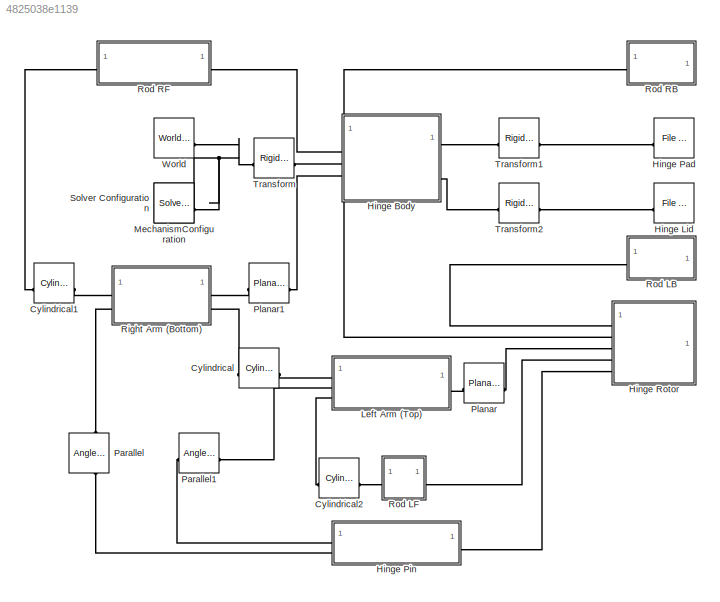
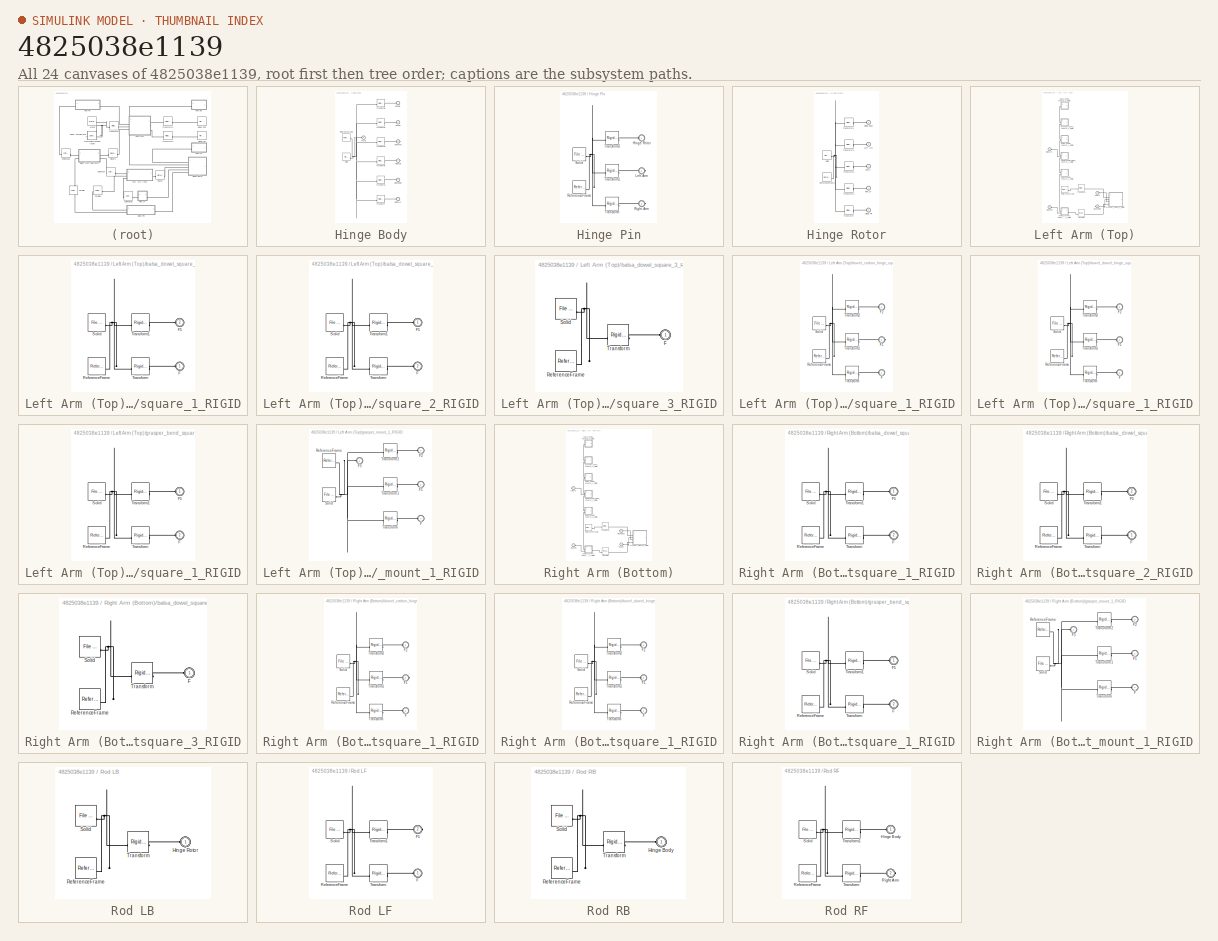
[diagram: thumbnail index - all 24 canvases of the model, root first then tree order]
MODEL slx_4825038e1139
KIND model
CONFIG AbsTol = auto
CONFIG EnableMultiTasking = off
CONFIG FixedStep = auto
CONFIG MaxStep = auto
CONFIG MinStep = auto
CONFIG RelTol = 1e-3
CONFIG SampleTimeConstraint = Unconstrained
CONFIG SolverName = VariableStepAuto
CONFIG StartTime = 0.0
CONFIG StopTime = 10.0
WORKSPACE source: external: MATLAB File  (data not in archive)
BLOCK [Reference] Cylindrical  REF=sm_lib/Joints/Cylindrical
Joint
  SourceBlock = sm_lib/Joints/Cylindrical\nJoint
  SourceType = Cylindrical\nJoint
BLOCK [Reference] Cylindrical1  REF=sm_lib/Joints/Cylindrical
Joint
  Commented = on
  SourceBlock = sm_lib/Joints/Cylindrical\nJoint
  SourceType = Cylindrical\nJoint
BLOCK [Reference] Cylindrical2  REF=sm_lib/Joints/Cylindrical
Joint
  SourceBlock = sm_lib/Joints/Cylindrical\nJoint
  SourceType = Cylindrical\nJoint
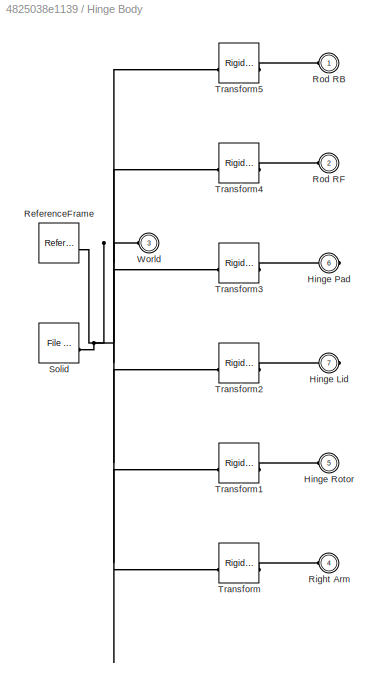
BLOCK [SubSystem] Hinge Body
BLOCK [PMIOPort] Hinge Body/Hinge Lid
  Port = 7
  Side = Right
BLOCK [PMIOPort] Hinge Body/Hinge Pad
  Port = 6
  Side = Right
BLOCK [PMIOPort] Hinge Body/Hinge Rotor
  Port = 5
  Side = Left
BLOCK [Reference] Hinge Body/ReferenceFrame  REF=sm_lib/Frames and
Transforms/Reference
Frame
  SourceBlock = sm_lib/Frames and\nTransforms/Reference\nFrame
  SourceType = Reference\nFrame
BLOCK [PMIOPort] Hinge Body/Right Arm
  Port = 4
  Side = Left
BLOCK [PMIOPort] Hinge Body/Rod RB
  Side = Left
BLOCK [PMIOPort] Hinge Body/Rod RF
  Port = 2
  Side = Left
BLOCK [Reference] Hinge Body/Solid  REF=sm_lib/Body Elements/File Solid
  SourceBlock = sm_lib/Body Elements/File Solid
  SourceType = File Solid
BLOCK [Reference] Hinge Body/Transform  REF=sm_lib/Frames and
Transforms/Rigid
Transform
  SourceBlock = sm_lib/Frames and\nTransforms/Rigid\nTransform
  SourceType = Rigid\nTransform
BLOCK [Reference] Hinge Body/Transform1  REF=sm_lib/Frames and
Transforms/Rigid
Transform
  SourceBlock = sm_lib/Frames and\nTransforms/Rigid\nTransform
  SourceType = Rigid\nTransform
BLOCK [Reference] Hinge Body/Transform2  REF=sm_lib/Frames and
Transforms/Rigid
Transform
  SourceBlock = sm_lib/Frames and\nTransforms/Rigid\nTransform
  SourceType = Rigid\nTransform
BLOCK [Reference] Hinge Body/Transform3  REF=sm_lib/Frames and
Transforms/Rigid
Transform
  SourceBlock = sm_lib/Frames and\nTransforms/Rigid\nTransform
  SourceType = Rigid\nTransform
BLOCK [Reference] Hinge Body/Transform4  REF=sm_lib/Frames and
Transforms/Rigid
Transform
  SourceBlock = sm_lib/Frames and\nTransforms/Rigid\nTransform
  SourceType = Rigid\nTransform
BLOCK [Reference] Hinge Body/Transform5  REF=sm_lib/Frames and
Transforms/Rigid
Transform
  SourceBlock = sm_lib/Frames and\nTransforms/Rigid\nTransform
  SourceType = Rigid\nTransform
BLOCK [PMIOPort] Hinge Body/World
  Port = 3
  Side = Left
BLOCK [Reference] Hinge Lid  REF=sm_lib/Body Elements/File Solid
  NameLocation = top
  SourceBlock = sm_lib/Body Elements/File Solid
  SourceType = File Solid
BLOCK [Reference] Hinge Pad  REF=sm_lib/Body Elements/File Solid
  NameLocation = top
  SourceBlock = sm_lib/Body Elements/File Solid
  SourceType = File Solid
BLOCK [SubSystem] Hinge Pin
BLOCK [PMIOPort] Hinge Pin/Hinge Rotor
  Side = Left
BLOCK [PMIOPort] Hinge Pin/Left Arm
  Port = 2
  Side = Right
BLOCK [Reference] Hinge Pin/ReferenceFrame  REF=sm_lib/Frames and
Transforms/Reference
Frame
  SourceBlock = sm_lib/Frames and\nTransforms/Reference\nFrame
  SourceType = Reference\nFrame
BLOCK [PMIOPort] Hinge Pin/Right Arm
  Port = 3
  Side = Right
BLOCK [Reference] Hinge Pin/Solid  REF=sm_lib/Body Elements/File Solid
  SourceBlock = sm_lib/Body Elements/File Solid
  SourceType = File Solid
BLOCK [Reference] Hinge Pin/Transform  REF=sm_lib/Frames and
Transforms/Rigid
Transform
  Commented = on
  SourceBlock = sm_lib/Frames and\nTransforms/Rigid\nTransform
  SourceType = Rigid\nTransform
BLOCK [Reference] Hinge Pin/Transform1  REF=sm_lib/Frames and
Transforms/Rigid
Transform
  Commented = on
  SourceBlock = sm_lib/Frames and\nTransforms/Rigid\nTransform
  SourceType = Rigid\nTransform
BLOCK [Reference] Hinge Pin/Transform2  REF=sm_lib/Frames and
Transforms/Rigid
Transform
  SourceBlock = sm_lib/Frames and\nTransforms/Rigid\nTransform
  SourceType = Rigid\nTransform
BLOCK [SubSystem] Hinge Rotor
BLOCK [PMIOPort] Hinge Rotor/Hinge Body
  Port = 2
  Side = Left
BLOCK [PMIOPort] Hinge Rotor/Hinge Pin
  Port = 5
  Side = Left
BLOCK [PMIOPort] Hinge Rotor/Left Arm
  Port = 3
  Side = Left
BLOCK [Reference] Hinge Rotor/ReferenceFrame  REF=sm_lib/Frames and
Transforms/Reference
Frame
  SourceBlock = sm_lib/Frames and\nTransforms/Reference\nFrame
  SourceType = Reference\nFrame
BLOCK [PMIOPort] Hinge Rotor/Rod 3
  Side = Left
BLOCK [PMIOPort] Hinge Rotor/Rod LF
  Port = 4
  Side = Left
BLOCK [Reference] Hinge Rotor/Solid  REF=sm_lib/Body Elements/File Solid
  SourceBlock = sm_lib/Body Elements/File Solid
  SourceType = File Solid
BLOCK [Reference] Hinge Rotor/Transform  REF=sm_lib/Frames and
Transforms/Rigid
Transform
  SourceBlock = sm_lib/Frames and\nTransforms/Rigid\nTransform
  SourceType = Rigid\nTransform
BLOCK [Reference] Hinge Rotor/Transform1  REF=sm_lib/Frames and
Transforms/Rigid
Transform
  SourceBlock = sm_lib/Frames and\nTransforms/Rigid\nTransform
  SourceType = Rigid\nTransform
BLOCK [Reference] Hinge Rotor/Transform2  REF=sm_lib/Frames and
Transforms/Rigid
Transform
  SourceBlock = sm_lib/Frames and\nTransforms/Rigid\nTransform
  SourceType = Rigid\nTransform
BLOCK [Reference] Hinge Rotor/Transform3  REF=sm_lib/Frames and
Transforms/Rigid
Transform
  SourceBlock = sm_lib/Frames and\nTransforms/Rigid\nTransform
  SourceType = Rigid\nTransform
BLOCK [Reference] Hinge Rotor/Transform4  REF=sm_lib/Frames and
Transforms/Rigid
Transform
  SourceBlock = sm_lib/Frames and\nTransforms/Rigid\nTransform
  SourceType = Rigid\nTransform
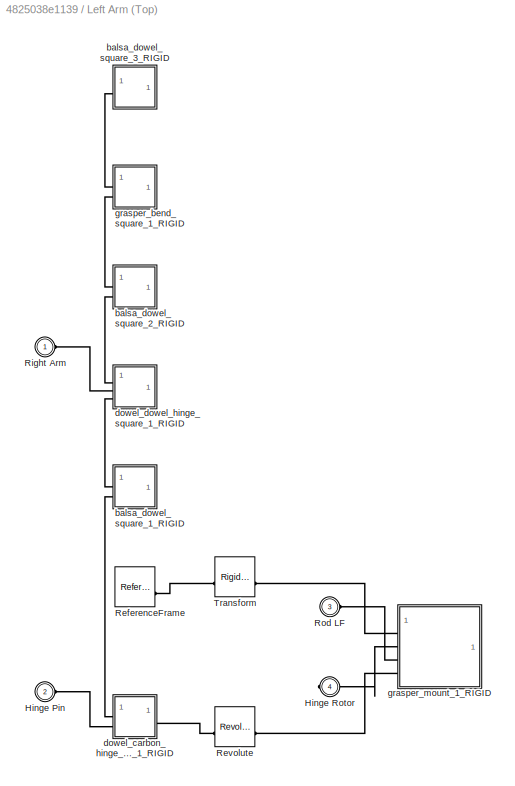
BLOCK [SubSystem] Left Arm (Top)
BLOCK [PMIOPort] Left Arm (Top)/Hinge Pin
  Port = 2
  Side = Left
BLOCK [PMIOPort] Left Arm (Top)/Hinge Rotor
  Port = 4
  Side = Right
BLOCK [Reference] Left Arm (Top)/ReferenceFrame  REF=sm_lib/Frames and
Transforms/Reference
Frame
  SourceBlock = sm_lib/Frames and\nTransforms/Reference\nFrame
  SourceType = Reference\nFrame
BLOCK [Reference] Left Arm (Top)/Revolute  REF=sm_lib/Joints/Revolute Joint
  SourceBlock = sm_lib/Joints/Revolute Joint
  SourceType = Revolute Joint
BLOCK [PMIOPort] Left Arm (Top)/Right Arm
  Side = Left
BLOCK [PMIOPort] Left Arm (Top)/Rod LF
  Port = 3
  Side = Left
BLOCK [Reference] Left Arm (Top)/Transform  REF=sm_lib/Frames and
Transforms/Rigid
Transform
  SourceBlock = sm_lib/Frames and\nTransforms/Rigid\nTransform
  SourceType = Rigid\nTransform
BLOCK [SubSystem] Left Arm (Top)/balsa_dowel_square_1_RIGID
BLOCK [PMIOPort] Left Arm (Top)/balsa_dowel_square_1_RIGID/F
  Side = Left
BLOCK [PMIOPort] Left Arm (Top)/balsa_dowel_square_1_RIGID/F1
  Port = 2
  Side = Left
BLOCK [Reference] Left Arm (Top)/balsa_dowel_square_1_RIGID/ReferenceFrame  REF=sm_lib/Frames and
Transforms/Reference
Frame
  SourceBlock = sm_lib/Frames and\nTransforms/Reference\nFrame
  SourceType = Reference\nFrame
BLOCK [Reference] Left Arm (Top)/balsa_dowel_square_1_RIGID/Solid  REF=sm_lib/Body Elements/File Solid
  SourceBlock = sm_lib/Body Elements/File Solid
  SourceType = File Solid
BLOCK [Reference] Left Arm (Top)/balsa_dowel_square_1_RIGID/Transform  REF=sm_lib/Frames and
Transforms/Rigid
Transform
  SourceBlock = sm_lib/Frames and\nTransforms/Rigid\nTransform
  SourceType = Rigid\nTransform
BLOCK [Reference] Left Arm (Top)/balsa_dowel_square_1_RIGID/Transform1  REF=sm_lib/Frames and
Transforms/Rigid
Transform
  SourceBlock = sm_lib/Frames and\nTransforms/Rigid\nTransform
  SourceType = Rigid\nTransform
BLOCK [SubSystem] Left Arm (Top)/balsa_dowel_square_2_RIGID
BLOCK [PMIOPort] Left Arm (Top)/balsa_dowel_square_2_RIGID/F
  Port = 2
  Side = Left
BLOCK [PMIOPort] Left Arm (Top)/balsa_dowel_square_2_RIGID/F1
  Side = Left
BLOCK [Reference] Left Arm (Top)/balsa_dowel_square_2_RIGID/ReferenceFrame  REF=sm_lib/Frames and
Transforms/Reference
Frame
  SourceBlock = sm_lib/Frames and\nTransforms/Reference\nFrame
  SourceType = Reference\nFrame
BLOCK [Reference] Left Arm (Top)/balsa_dowel_square_2_RIGID/Solid  REF=sm_lib/Body Elements/File Solid
  SourceBlock = sm_lib/Body Elements/File Solid
  SourceType = File Solid
BLOCK [Reference] Left Arm (Top)/balsa_dowel_square_2_RIGID/Transform  REF=sm_lib/Frames and
Transforms/Rigid
Transform
  SourceBlock = sm_lib/Frames and\nTransforms/Rigid\nTransform
  SourceType = Rigid\nTransform
BLOCK [Reference] Left Arm (Top)/balsa_dowel_square_2_RIGID/Transform1  REF=sm_lib/Frames and
Transforms/Rigid
Transform
  SourceBlock = sm_lib/Frames and\nTransforms/Rigid\nTransform
  SourceType = Rigid\nTransform
BLOCK [SubSystem] Left Arm (Top)/balsa_dowel_square_3_RIGID
BLOCK [PMIOPort] Left Arm (Top)/balsa_dowel_square_3_RIGID/F
  Side = Left
BLOCK [Reference] Left Arm (Top)/balsa_dowel_square_3_RIGID/ReferenceFrame  REF=sm_lib/Frames and
Transforms/Reference
Frame
  SourceBlock = sm_lib/Frames and\nTransforms/Reference\nFrame
  SourceType = Reference\nFrame
BLOCK [Reference] Left Arm (Top)/balsa_dowel_square_3_RIGID/Solid  REF=sm_lib/Body Elements/File Solid
  SourceBlock = sm_lib/Body Elements/File Solid
  SourceType = File Solid
BLOCK [Reference] Left Arm (Top)/balsa_dowel_square_3_RIGID/Transform  REF=sm_lib/Frames and
Transforms/Rigid
Transform
  SourceBlock = sm_lib/Frames and\nTransforms/Rigid\nTransform
  SourceType = Rigid\nTransform
BLOCK [SubSystem] Left Arm (Top)/dowel_carbon_hinge_square_1_RIGID
BLOCK [PMIOPort] Left Arm (Top)/dowel_carbon_hinge_square_1_RIGID/F
  Side = Left
BLOCK [PMIOPort] Left Arm (Top)/dowel_carbon_hinge_square_1_RIGID/F1
  Port = 3
  Side = Right
BLOCK [PMIOPort] Left Arm (Top)/dowel_carbon_hinge_square_1_RIGID/F2
  Port = 2
  Side = Left
BLOCK [Reference] Left Arm (Top)/dowel_carbon_hinge_square_1_RIGID/ReferenceFrame  REF=sm_lib/Frames and
Transforms/Reference
Frame
  SourceBlock = sm_lib/Frames and\nTransforms/Reference\nFrame
  SourceType = Reference\nFrame
BLOCK [Reference] Left Arm (Top)/dowel_carbon_hinge_square_1_RIGID/Solid  REF=sm_lib/Body Elements/File Solid
  SourceBlock = sm_lib/Body Elements/File Solid
  SourceType = File Solid
BLOCK [Reference] Left Arm (Top)/dowel_carbon_hinge_square_1_RIGID/Transform  REF=sm_lib/Frames and
Transforms/Rigid
Transform
  SourceBlock = sm_lib/Frames and\nTransforms/Rigid\nTransform
  SourceType = Rigid\nTransform
BLOCK [Reference] Left Arm (Top)/dowel_carbon_hinge_square_1_RIGID/Transform1  REF=sm_lib/Frames and
Transforms/Rigid
Transform
  SourceBlock = sm_lib/Frames and\nTransforms/Rigid\nTransform
  SourceType = Rigid\nTransform
BLOCK [Reference] Left Arm (Top)/dowel_carbon_hinge_square_1_RIGID/Transform2  REF=sm_lib/Frames and
Transforms/Rigid
Transform
  SourceBlock = sm_lib/Frames and\nTransforms/Rigid\nTransform
  SourceType = Rigid\nTransform
BLOCK [SubSystem] Left Arm (Top)/dowel_dowel_hinge_square_1_RIGID
BLOCK [PMIOPort] Left Arm (Top)/dowel_dowel_hinge_square_1_RIGID/F
  Port = 3
  Side = Left
BLOCK [PMIOPort] Left Arm (Top)/dowel_dowel_hinge_square_1_RIGID/F1
  Side = Left
BLOCK [PMIOPort] Left Arm (Top)/dowel_dowel_hinge_square_1_RIGID/F2
  Port = 2
  Side = Left
BLOCK [Reference] Left Arm (Top)/dowel_dowel_hinge_square_1_RIGID/ReferenceFrame  REF=sm_lib/Frames and
Transforms/Reference
Frame
  SourceBlock = sm_lib/Frames and\nTransforms/Reference\nFrame
  SourceType = Reference\nFrame
BLOCK [Reference] Left Arm (Top)/dowel_dowel_hinge_square_1_RIGID/Solid  REF=sm_lib/Body Elements/File Solid
  SourceBlock = sm_lib/Body Elements/File Solid
  SourceType = File Solid
BLOCK [Reference] Left Arm (Top)/dowel_dowel_hinge_square_1_RIGID/Transform  REF=sm_lib/Frames and
Transforms/Rigid
Transform
  SourceBlock = sm_lib/Frames and\nTransforms/Rigid\nTransform
  SourceType = Rigid\nTransform
BLOCK [Reference] Left Arm (Top)/dowel_dowel_hinge_square_1_RIGID/Transform1  REF=sm_lib/Frames and
Transforms/Rigid
Transform
  SourceBlock = sm_lib/Frames and\nTransforms/Rigid\nTransform
  SourceType = Rigid\nTransform
BLOCK [Reference] Left Arm (Top)/dowel_dowel_hinge_square_1_RIGID/Transform2  REF=sm_lib/Frames and
Transforms/Rigid
Transform
  SourceBlock = sm_lib/Frames and\nTransforms/Rigid\nTransform
  SourceType = Rigid\nTransform
BLOCK [SubSystem] Left Arm (Top)/grasper_bend_square_1_RIGID
BLOCK [PMIOPort] Left Arm (Top)/grasper_bend_square_1_RIGID/F
  Port = 2
  Side = Left
BLOCK [PMIOPort] Left Arm (Top)/grasper_bend_square_1_RIGID/F1
  Side = Left
BLOCK [Reference] Left Arm (Top)/grasper_bend_square_1_RIGID/ReferenceFrame  REF=sm_lib/Frames and
Transforms/Reference
Frame
  SourceBlock = sm_lib/Frames and\nTransforms/Reference\nFrame
  SourceType = Reference\nFrame
BLOCK [Reference] Left Arm (Top)/grasper_bend_square_1_RIGID/Solid  REF=sm_lib/Body Elements/File Solid
  SourceBlock = sm_lib/Body Elements/File Solid
  SourceType = File Solid
BLOCK [Reference] Left Arm (Top)/grasper_bend_square_1_RIGID/Transform  REF=sm_lib/Frames and
Transforms/Rigid
Transform
  SourceBlock = sm_lib/Frames and\nTransforms/Rigid\nTransform
  SourceType = Rigid\nTransform
BLOCK [Reference] Left Arm (Top)/grasper_bend_square_1_RIGID/Transform1  REF=sm_lib/Frames and
Transforms/Rigid
Transform
  SourceBlock = sm_lib/Frames and\nTransforms/Rigid\nTransform
  SourceType = Rigid\nTransform
BLOCK [SubSystem] Left Arm (Top)/grasper_mount_1_RIGID
BLOCK [PMIOPort] Left Arm (Top)/grasper_mount_1_RIGID/F
  Port = 4
  Side = Left
BLOCK [PMIOPort] Left Arm (Top)/grasper_mount_1_RIGID/F1
  Port = 2
  Side = Left
BLOCK [PMIOPort] Left Arm (Top)/grasper_mount_1_RIGID/F2
  Port = 3
  Side = Left
BLOCK [PMIOPort] Left Arm (Top)/grasper_mount_1_RIGID/F3
  Side = Left
BLOCK [Reference] Left Arm (Top)/grasper_mount_1_RIGID/ReferenceFrame  REF=sm_lib/Frames and
Transforms/Reference
Frame
  SourceBlock = sm_lib/Frames and\nTransforms/Reference\nFrame
  SourceType = Reference\nFrame
BLOCK [Reference] Left Arm (Top)/grasper_mount_1_RIGID/Solid  REF=sm_lib/Body Elements/File Solid
  SourceBlock = sm_lib/Body Elements/File Solid
  SourceType = File Solid
BLOCK [Reference] Left Arm (Top)/grasper_mount_1_RIGID/Transform  REF=sm_lib/Frames and
Transforms/Rigid
Transform
  SourceBlock = sm_lib/Frames and\nTransforms/Rigid\nTransform
  SourceType = Rigid\nTransform
BLOCK [Reference] Left Arm (Top)/grasper_mount_1_RIGID/Transform1  REF=sm_lib/Frames and
Transforms/Rigid
Transform
  SourceBlock = sm_lib/Frames and\nTransforms/Rigid\nTransform
  SourceType = Rigid\nTransform
BLOCK [Reference] Left Arm (Top)/grasper_mount_1_RIGID/Transform2  REF=sm_lib/Frames and
Transforms/Rigid
Transform
  SourceBlock = sm_lib/Frames and\nTransforms/Rigid\nTransform
  SourceType = Rigid\nTransform
BLOCK [Reference] MechanismConfiguration  REF=sm_lib/Utilities/Mechanism
Configuration
  SourceBlock = sm_lib/Utilities/Mechanism\nConfiguration
  SourceType = Mechanism\nConfiguration
BLOCK [Reference] Parallel  REF=sm_lib/Constraints/Angle
Constraint
  Commented = on
  NameLocation = right
  SourceBlock = sm_lib/Constraints/Angle\nConstraint
  SourceType = Angle\nConstraint
BLOCK [Reference] Parallel1  REF=sm_lib/Constraints/Angle
Constraint
  Commented = on
  SourceBlock = sm_lib/Constraints/Angle\nConstraint
  SourceType = Angle\nConstraint
BLOCK [Reference] Planar  REF=sm_lib/Joints/Planar Joint
  SourceBlock = sm_lib/Joints/Planar Joint
  SourceType = Planar Joint
BLOCK [Reference] Planar1  REF=sm_lib/Joints/Planar Joint
  SourceBlock = sm_lib/Joints/Planar Joint
  SourceType = Planar Joint
BLOCK [SubSystem] Right Arm (Bottom)
BLOCK [PMIOPort] Right Arm (Bottom)/Hinge Body
  Port = 3
  Side = Right
BLOCK [PMIOPort] Right Arm (Bottom)/Hinge Pin
  Port = 2
  Side = Left
BLOCK [PMIOPort] Right Arm (Bottom)/Left Arm
  Port = 4
  Side = Right
BLOCK [Reference] Right Arm (Bottom)/ReferenceFrame  REF=sm_lib/Frames and
Transforms/Reference
Frame
  SourceBlock = sm_lib/Frames and\nTransforms/Reference\nFrame
  SourceType = Reference\nFrame
BLOCK [Reference] Right Arm (Bottom)/Revolute  REF=sm_lib/Joints/Revolute Joint
  SourceBlock = sm_lib/Joints/Revolute Joint
  SourceType = Revolute Joint
BLOCK [PMIOPort] Right Arm (Bottom)/Rod RF
  Side = Left
BLOCK [Reference] Right Arm (Bottom)/Transform  REF=sm_lib/Frames and
Transforms/Rigid
Transform
  SourceBlock = sm_lib/Frames and\nTransforms/Rigid\nTransform
  SourceType = Rigid\nTransform
BLOCK [SubSystem] Right Arm (Bottom)/balsa_dowel_square_1_RIGID
BLOCK [PMIOPort] Right Arm (Bottom)/balsa_dowel_square_1_RIGID/F
  Port = 2
  Side = Left
BLOCK [PMIOPort] Right Arm (Bottom)/balsa_dowel_square_1_RIGID/F1
  Side = Left
BLOCK [Reference] Right Arm (Bottom)/balsa_dowel_square_1_RIGID/ReferenceFrame  REF=sm_lib/Frames and
Transforms/Reference
Frame
  SourceBlock = sm_lib/Frames and\nTransforms/Reference\nFrame
  SourceType = Reference\nFrame
BLOCK [Reference] Right Arm (Bottom)/balsa_dowel_square_1_RIGID/Solid  REF=sm_lib/Body Elements/File Solid
  SourceBlock = sm_lib/Body Elements/File Solid
  SourceType = File Solid
BLOCK [Reference] Right Arm (Bottom)/balsa_dowel_square_1_RIGID/Transform  REF=sm_lib/Frames and
Transforms/Rigid
Transform
  SourceBlock = sm_lib/Frames and\nTransforms/Rigid\nTransform
  SourceType = Rigid\nTransform
BLOCK [Reference] Right Arm (Bottom)/balsa_dowel_square_1_RIGID/Transform1  REF=sm_lib/Frames and
Transforms/Rigid
Transform
  SourceBlock = sm_lib/Frames and\nTransforms/Rigid\nTransform
  SourceType = Rigid\nTransform
BLOCK [SubSystem] Right Arm (Bottom)/balsa_dowel_square_2_RIGID
BLOCK [PMIOPort] Right Arm (Bottom)/balsa_dowel_square_2_RIGID/F
  Side = Left
BLOCK [PMIOPort] Right Arm (Bottom)/balsa_dowel_square_2_RIGID/F1
  Port = 2
  Side = Left
BLOCK [Reference] Right Arm (Bottom)/balsa_dowel_square_2_RIGID/ReferenceFrame  REF=sm_lib/Frames and
Transforms/Reference
Frame
  SourceBlock = sm_lib/Frames and\nTransforms/Reference\nFrame
  SourceType = Reference\nFrame
BLOCK [Reference] Right Arm (Bottom)/balsa_dowel_square_2_RIGID/Solid  REF=sm_lib/Body Elements/File Solid
  SourceBlock = sm_lib/Body Elements/File Solid
  SourceType = File Solid
BLOCK [Reference] Right Arm (Bottom)/balsa_dowel_square_2_RIGID/Transform  REF=sm_lib/Frames and
Transforms/Rigid
Transform
  SourceBlock = sm_lib/Frames and\nTransforms/Rigid\nTransform
  SourceType = Rigid\nTransform
BLOCK [Reference] Right Arm (Bottom)/balsa_dowel_square_2_RIGID/Transform1  REF=sm_lib/Frames and
Transforms/Rigid
Transform
  SourceBlock = sm_lib/Frames and\nTransforms/Rigid\nTransform
  SourceType = Rigid\nTransform
BLOCK [SubSystem] Right Arm (Bottom)/balsa_dowel_square_3_RIGID
BLOCK [PMIOPort] Right Arm (Bottom)/balsa_dowel_square_3_RIGID/F
  Side = Left
BLOCK [Reference] Right Arm (Bottom)/balsa_dowel_square_3_RIGID/ReferenceFrame  REF=sm_lib/Frames and
Transforms/Reference
Frame
  SourceBlock = sm_lib/Frames and\nTransforms/Reference\nFrame
  SourceType = Reference\nFrame
BLOCK [Reference] Right Arm (Bottom)/balsa_dowel_square_3_RIGID/Solid  REF=sm_lib/Body Elements/File Solid
  SourceBlock = sm_lib/Body Elements/File Solid
  SourceType = File Solid
BLOCK [Reference] Right Arm (Bottom)/balsa_dowel_square_3_RIGID/Transform  REF=sm_lib/Frames and
Transforms/Rigid
Transform
  SourceBlock = sm_lib/Frames and\nTransforms/Rigid\nTransform
  SourceType = Rigid\nTransform
BLOCK [SubSystem] Right Arm (Bottom)/dowel_carbon_hinge_square_1_RIGID
BLOCK [PMIOPort] Right Arm (Bottom)/dowel_carbon_hinge_square_1_RIGID/F
  Side = Left
BLOCK [PMIOPort] Right Arm (Bottom)/dowel_carbon_hinge_square_1_RIGID/F1
  Port = 3
  Side = Right
BLOCK [PMIOPort] Right Arm (Bottom)/dowel_carbon_hinge_square_1_RIGID/F2
  Port = 2
  Side = Left
BLOCK [Reference] Right Arm (Bottom)/dowel_carbon_hinge_square_1_RIGID/ReferenceFrame  REF=sm_lib/Frames and
Transforms/Reference
Frame
  SourceBlock = sm_lib/Frames and\nTransforms/Reference\nFrame
  SourceType = Reference\nFrame
BLOCK [Reference] Right Arm (Bottom)/dowel_carbon_hinge_square_1_RIGID/Solid  REF=sm_lib/Body Elements/File Solid
  SourceBlock = sm_lib/Body Elements/File Solid
  SourceType = File Solid
BLOCK [Reference] Right Arm (Bottom)/dowel_carbon_hinge_square_1_RIGID/Transform  REF=sm_lib/Frames and
Transforms/Rigid
Transform
  SourceBlock = sm_lib/Frames and\nTransforms/Rigid\nTransform
  SourceType = Rigid\nTransform
BLOCK [Reference] Right Arm (Bottom)/dowel_carbon_hinge_square_1_RIGID/Transform1  REF=sm_lib/Frames and
Transforms/Rigid
Transform
  SourceBlock = sm_lib/Frames and\nTransforms/Rigid\nTransform
  SourceType = Rigid\nTransform
BLOCK [Reference] Right Arm (Bottom)/dowel_carbon_hinge_square_1_RIGID/Transform2  REF=sm_lib/Frames and
Transforms/Rigid
Transform
  SourceBlock = sm_lib/Frames and\nTransforms/Rigid\nTransform
  SourceType = Rigid\nTransform
BLOCK [SubSystem] Right Arm (Bottom)/dowel_dowel_hinge_square_1_RIGID
BLOCK [PMIOPort] Right Arm (Bottom)/dowel_dowel_hinge_square_1_RIGID/F
  Side = Left
BLOCK [PMIOPort] Right Arm (Bottom)/dowel_dowel_hinge_square_1_RIGID/F1
  Port = 3
  Side = Left
BLOCK [PMIOPort] Right Arm (Bottom)/dowel_dowel_hinge_square_1_RIGID/F2
  Port = 2
  Side = Left
BLOCK [Reference] Right Arm (Bottom)/dowel_dowel_hinge_square_1_RIGID/ReferenceFrame  REF=sm_lib/Frames and
Transforms/Reference
Frame
  SourceBlock = sm_lib/Frames and\nTransforms/Reference\nFrame
  SourceType = Reference\nFrame
BLOCK [Reference] Right Arm (Bottom)/dowel_dowel_hinge_square_1_RIGID/Solid  REF=sm_lib/Body Elements/File Solid
  SourceBlock = sm_lib/Body Elements/File Solid
  SourceType = File Solid
BLOCK [Reference] Right Arm (Bottom)/dowel_dowel_hinge_square_1_RIGID/Transform  REF=sm_lib/Frames and
Transforms/Rigid
Transform
  SourceBlock = sm_lib/Frames and\nTransforms/Rigid\nTransform
  SourceType = Rigid\nTransform
BLOCK [Reference] Right Arm (Bottom)/dowel_dowel_hinge_square_1_RIGID/Transform1  REF=sm_lib/Frames and
Transforms/Rigid
Transform
  SourceBlock = sm_lib/Frames and\nTransforms/Rigid\nTransform
  SourceType = Rigid\nTransform
BLOCK [Reference] Right Arm (Bottom)/dowel_dowel_hinge_square_1_RIGID/Transform2  REF=sm_lib/Frames and
Transforms/Rigid
Transform
  SourceBlock = sm_lib/Frames and\nTransforms/Rigid\nTransform
  SourceType = Rigid\nTransform
BLOCK [SubSystem] Right Arm (Bottom)/grasper_bend_square_1_RIGID
BLOCK [PMIOPort] Right Arm (Bottom)/grasper_bend_square_1_RIGID/F
  Port = 2
  Side = Left
BLOCK [PMIOPort] Right Arm (Bottom)/grasper_bend_square_1_RIGID/F1
  Side = Left
BLOCK [Reference] Right Arm (Bottom)/grasper_bend_square_1_RIGID/ReferenceFrame  REF=sm_lib/Frames and
Transforms/Reference
Frame
  SourceBlock = sm_lib/Frames and\nTransforms/Reference\nFrame
  SourceType = Reference\nFrame
BLOCK [Reference] Right Arm (Bottom)/grasper_bend_square_1_RIGID/Solid  REF=sm_lib/Body Elements/File Solid
  SourceBlock = sm_lib/Body Elements/File Solid
  SourceType = File Solid
BLOCK [Reference] Right Arm (Bottom)/grasper_bend_square_1_RIGID/Transform  REF=sm_lib/Frames and
Transforms/Rigid
Transform
  SourceBlock = sm_lib/Frames and\nTransforms/Rigid\nTransform
  SourceType = Rigid\nTransform
BLOCK [Reference] Right Arm (Bottom)/grasper_bend_square_1_RIGID/Transform1  REF=sm_lib/Frames and
Transforms/Rigid
Transform
  SourceBlock = sm_lib/Frames and\nTransforms/Rigid\nTransform
  SourceType = Rigid\nTransform
BLOCK [SubSystem] Right Arm (Bottom)/grasper_mount_1_RIGID
BLOCK [PMIOPort] Right Arm (Bottom)/grasper_mount_1_RIGID/F
  Port = 4
  Side = Left
BLOCK [PMIOPort] Right Arm (Bottom)/grasper_mount_1_RIGID/F1
  Port = 2
  Side = Left
BLOCK [PMIOPort] Right Arm (Bottom)/grasper_mount_1_RIGID/F2
  Port = 3
  Side = Left
BLOCK [PMIOPort] Right Arm (Bottom)/grasper_mount_1_RIGID/F3
  Side = Left
BLOCK [Reference] Right Arm (Bottom)/grasper_mount_1_RIGID/ReferenceFrame  REF=sm_lib/Frames and
Transforms/Reference
Frame
  SourceBlock = sm_lib/Frames and\nTransforms/Reference\nFrame
  SourceType = Reference\nFrame
BLOCK [Reference] Right Arm (Bottom)/grasper_mount_1_RIGID/Solid  REF=sm_lib/Body Elements/File Solid
  SourceBlock = sm_lib/Body Elements/File Solid
  SourceType = File Solid
BLOCK [Reference] Right Arm (Bottom)/grasper_mount_1_RIGID/Transform  REF=sm_lib/Frames and
Transforms/Rigid
Transform
  SourceBlock = sm_lib/Frames and\nTransforms/Rigid\nTransform
  SourceType = Rigid\nTransform
BLOCK [Reference] Right Arm (Bottom)/grasper_mount_1_RIGID/Transform1  REF=sm_lib/Frames and
Transforms/Rigid
Transform
  SourceBlock = sm_lib/Frames and\nTransforms/Rigid\nTransform
  SourceType = Rigid\nTransform
BLOCK [Reference] Right Arm (Bottom)/grasper_mount_1_RIGID/Transform2  REF=sm_lib/Frames and
Transforms/Rigid
Transform
  SourceBlock = sm_lib/Frames and\nTransforms/Rigid\nTransform
  SourceType = Rigid\nTransform
BLOCK [SubSystem] Rod LB
BLOCK [PMIOPort] Rod LB/Hinge Rotor
  Side = Left
BLOCK [Reference] Rod LB/ReferenceFrame  REF=sm_lib/Frames and
Transforms/Reference
Frame
  SourceBlock = sm_lib/Frames and\nTransforms/Reference\nFrame
  SourceType = Reference\nFrame
BLOCK [Reference] Rod LB/Solid  REF=sm_lib/Body Elements/File Solid
  SourceBlock = sm_lib/Body Elements/File Solid
  SourceType = File Solid
BLOCK [Reference] Rod LB/Transform  REF=sm_lib/Frames and
Transforms/Rigid
Transform
  SourceBlock = sm_lib/Frames and\nTransforms/Rigid\nTransform
  SourceType = Rigid\nTransform
BLOCK [SubSystem] Rod LF
BLOCK [PMIOPort] Rod LF/F
  Side = Left
BLOCK [PMIOPort] Rod LF/F1
  Port = 2
  Side = Right
BLOCK [Reference] Rod LF/ReferenceFrame  REF=sm_lib/Frames and
Transforms/Reference
Frame
  SourceBlock = sm_lib/Frames and\nTransforms/Reference\nFrame
  SourceType = Reference\nFrame
BLOCK [Reference] Rod LF/Solid  REF=sm_lib/Body Elements/File Solid
  SourceBlock = sm_lib/Body Elements/File Solid
  SourceType = File Solid
BLOCK [Reference] Rod LF/Transform  REF=sm_lib/Frames and
Transforms/Rigid
Transform
  SourceBlock = sm_lib/Frames and\nTransforms/Rigid\nTransform
  SourceType = Rigid\nTransform
BLOCK [Reference] Rod LF/Transform1  REF=sm_lib/Frames and
Transforms/Rigid
Transform
  SourceBlock = sm_lib/Frames and\nTransforms/Rigid\nTransform
  SourceType = Rigid\nTransform
BLOCK [SubSystem] Rod RB
BLOCK [PMIOPort] Rod RB/Hinge Body
  Side = Left
BLOCK [Reference] Rod RB/ReferenceFrame  REF=sm_lib/Frames and
Transforms/Reference
Frame
  SourceBlock = sm_lib/Frames and\nTransforms/Reference\nFrame
  SourceType = Reference\nFrame
BLOCK [Reference] Rod RB/Solid  REF=sm_lib/Body Elements/File Solid
  SourceBlock = sm_lib/Body Elements/File Solid
  SourceType = File Solid
BLOCK [Reference] Rod RB/Transform  REF=sm_lib/Frames and
Transforms/Rigid
Transform
  SourceBlock = sm_lib/Frames and\nTransforms/Rigid\nTransform
  SourceType = Rigid\nTransform
BLOCK [SubSystem] Rod RF
BLOCK [PMIOPort] Rod RF/Hinge Body
  Side = Left
BLOCK [Reference] Rod RF/ReferenceFrame  REF=sm_lib/Frames and
Transforms/Reference
Frame
  SourceBlock = sm_lib/Frames and\nTransforms/Reference\nFrame
  SourceType = Reference\nFrame
BLOCK [PMIOPort] Rod RF/Right Arm
  Port = 2
  Side = Right
BLOCK [Reference] Rod RF/Solid  REF=sm_lib/Body Elements/File Solid
  SourceBlock = sm_lib/Body Elements/File Solid
  SourceType = File Solid
BLOCK [Reference] Rod RF/Transform  REF=sm_lib/Frames and
Transforms/Rigid
Transform
  SourceBlock = sm_lib/Frames and\nTransforms/Rigid\nTransform
  SourceType = Rigid\nTransform
BLOCK [Reference] Rod RF/Transform1  REF=sm_lib/Frames and
Transforms/Rigid
Transform
  SourceBlock = sm_lib/Frames and\nTransforms/Rigid\nTransform
  SourceType = Rigid\nTransform
BLOCK [Reference] Solver Configuration  REF=nesl_utility/Solver
Configuration
  SourceBlock = nesl_utility/Solver\nConfiguration
  SourceType = Solver\nConfiguration
BLOCK [Reference] Transform  REF=sm_lib/Frames and
Transforms/Rigid
Transform
  SourceBlock = sm_lib/Frames and\nTransforms/Rigid\nTransform
  SourceType = Rigid\nTransform
BLOCK [Reference] Transform1  REF=sm_lib/Frames and
Transforms/Rigid
Transform
  NameLocation = top
  SourceBlock = sm_lib/Frames and\nTransforms/Rigid\nTransform
  SourceType = Rigid\nTransform
BLOCK [Reference] Transform2  REF=sm_lib/Frames and
Transforms/Rigid
Transform
  NameLocation = top
  SourceBlock = sm_lib/Frames and\nTransforms/Rigid\nTransform
  SourceType = Rigid\nTransform
BLOCK [Reference] World  REF=sm_lib/Frames and
Transforms/World Frame
  SourceBlock = sm_lib/Frames and\nTransforms/World Frame
  SourceType = World Frame
PLINE Cylindrical1:LConn1 -- Rod RF:RConn1
PLINE Cylindrical1:RConn1 -- Right Arm (Bottom):LConn1
PLINE Cylindrical2:LConn1 -- Rod LF:RConn1
PLINE Cylindrical2:RConn1 -- Left Arm (Top):LConn3
PLINE Cylindrical:LConn1 -- Right Arm (Bottom):RConn2
PLINE Cylindrical:RConn1 -- Left Arm (Top):LConn1
PLINE Hinge Body/Hinge Lid:RConn1 -- Hinge Body/Transform2:RConn1
PLINE Hinge Body/Hinge Pad:RConn1 -- Hinge Body/Transform3:RConn1
PLINE Hinge Body/Hinge Rotor:RConn1 -- Hinge Body/Transform1:RConn1
PNET net1: Hinge Body/ReferenceFrame:RConn1 -- Hinge Body/Solid:RConn1 -- Hinge Body/Transform1:LConn1 -- Hinge Body/Transform2:LConn1 -- Hinge Body/Transform3:LConn1 -- Hinge Body/Transform4:LConn1 -- Hinge Body/Transform5:LConn1 -- Hinge Body/Transform:LConn1 -- Hinge Body/World:RConn1
PLINE Hinge Body/Right Arm:RConn1 -- Hinge Body/Transform:RConn1
PLINE Hinge Body/Rod RB:RConn1 -- Hinge Body/Transform5:RConn1
PLINE Hinge Body/Rod RF:RConn1 -- Hinge Body/Transform4:RConn1
PLINE Hinge Body:LConn1 -- Rod RB:LConn1
PLINE Hinge Body:LConn2 -- Rod RF:LConn1
PLINE Hinge Body:LConn3 -- Transform:RConn1
PLINE Hinge Body:LConn4 -- Planar1:RConn1
PLINE Hinge Body:LConn5 -- Hinge Rotor:LConn2
PLINE Hinge Body:RConn1 -- Transform1:RConn1
PLINE Hinge Body:RConn2 -- Transform2:RConn1
PLINE Hinge Lid:RConn1 -- Transform2:LConn1
PLINE Hinge Pad:RConn1 -- Transform1:LConn1
PLINE Hinge Pin/Hinge Rotor:RConn1 -- Hinge Pin/Transform2:RConn1
PLINE Hinge Pin/Left Arm:RConn1 -- Hinge Pin/Transform1:RConn1
PNET net2: Hinge Pin/ReferenceFrame:RConn1 -- Hinge Pin/Solid:RConn1 -- Hinge Pin/Transform1:LConn1 -- Hinge Pin/Transform2:LConn1 -- Hinge Pin/Transform:LConn1
PLINE Hinge Pin/Right Arm:RConn1 -- Hinge Pin/Transform:RConn1
PLINE Hinge Pin:LConn1 -- Hinge Rotor:LConn5
PLINE Hinge Pin:RConn1 -- Parallel1:LConn1
PLINE Hinge Pin:RConn2 -- Parallel:LConn1
PLINE Hinge Rotor/Hinge Body:RConn1 -- Hinge Rotor/Transform4:RConn1
PLINE Hinge Rotor/Hinge Pin:RConn1 -- Hinge Rotor/Transform:RConn1
PLINE Hinge Rotor/Left Arm:RConn1 -- Hinge Rotor/Transform3:RConn1
PNET net3: Hinge Rotor/ReferenceFrame:RConn1 -- Hinge Rotor/Solid:RConn1 -- Hinge Rotor/Transform1:LConn1 -- Hinge Rotor/Transform2:LConn1 -- Hinge Rotor/Transform3:LConn1 -- Hinge Rotor/Transform4:LConn1 -- Hinge Rotor/Transform:LConn1
PLINE Hinge Rotor/Rod 3:RConn1 -- Hinge Rotor/Transform2:RConn1
PLINE Hinge Rotor/Rod LF:RConn1 -- Hinge Rotor/Transform1:RConn1
PLINE Hinge Rotor:LConn1 -- Rod LB:LConn1
PLINE Hinge Rotor:LConn3 -- Planar:RConn1
PLINE Hinge Rotor:LConn4 -- Rod LF:LConn1
PLINE Left Arm (Top)/Hinge Pin:RConn1 -- Left Arm (Top)/dowel_carbon_hinge_square_1_RIGID:LConn2
PLINE Left Arm (Top)/Hinge Rotor:RConn1 -- Left Arm (Top)/grasper_mount_1_RIGID:LConn2
PLINE Left Arm (Top)/ReferenceFrame:RConn1 -- Left Arm (Top)/Transform:LConn1
PLINE Left Arm (Top)/Revolute:LConn1 -- Left Arm (Top)/dowel_carbon_hinge_square_1_RIGID:RConn1
PLINE Left Arm (Top)/Revolute:RConn1 -- Left Arm (Top)/grasper_mount_1_RIGID:LConn4
PLINE Left Arm (Top)/Right Arm:RConn1 -- Left Arm (Top)/dowel_dowel_hinge_square_1_RIGID:LConn2
PLINE Left Arm (Top)/Rod LF:RConn1 -- Left Arm (Top)/grasper_mount_1_RIGID:LConn3
PLINE Left Arm (Top)/Transform:RConn1 -- Left Arm (Top)/grasper_mount_1_RIGID:LConn1
PLINE Left Arm (Top)/balsa_dowel_square_1_RIGID/F1:RConn1 -- Left Arm (Top)/balsa_dowel_square_1_RIGID/Transform1:RConn1
PLINE Left Arm (Top)/balsa_dowel_square_1_RIGID/F:RConn1 -- Left Arm (Top)/balsa_dowel_square_1_RIGID/Transform:RConn1
PNET net4: Left Arm (Top)/balsa_dowel_square_1_RIGID/ReferenceFrame:RConn1 -- Left Arm (Top)/balsa_dowel_square_1_RIGID/Solid:RConn1 -- Left Arm (Top)/balsa_dowel_square_1_RIGID/Transform1:LConn1 -- Left Arm (Top)/balsa_dowel_square_1_RIGID/Transform:LConn1
PLINE Left Arm (Top)/balsa_dowel_square_1_RIGID:LConn1 -- Left Arm (Top)/dowel_dowel_hinge_square_1_RIGID:LConn3
PLINE Left Arm (Top)/balsa_dowel_square_1_RIGID:LConn2 -- Left Arm (Top)/dowel_carbon_hinge_square_1_RIGID:LConn1
PLINE Left Arm (Top)/balsa_dowel_square_2_RIGID/F1:RConn1 -- Left Arm (Top)/balsa_dowel_square_2_RIGID/Transform1:RConn1
PLINE Left Arm (Top)/balsa_dowel_square_2_RIGID/F:RConn1 -- Left Arm (Top)/balsa_dowel_square_2_RIGID/Transform:RConn1
PNET net5: Left Arm (Top)/balsa_dowel_square_2_RIGID/ReferenceFrame:RConn1 -- Left Arm (Top)/balsa_dowel_square_2_RIGID/Solid:RConn1 -- Left Arm (Top)/balsa_dowel_square_2_RIGID/Transform1:LConn1 -- Left Arm (Top)/balsa_dowel_square_2_RIGID/Transform:LConn1
PLINE Left Arm (Top)/balsa_dowel_square_2_RIGID:LConn1 -- Left Arm (Top)/grasper_bend_square_1_RIGID:LConn2
PLINE Left Arm (Top)/balsa_dowel_square_2_RIGID:LConn2 -- Left Arm (Top)/dowel_dowel_hinge_square_1_RIGID:LConn1
PLINE Left Arm (Top)/balsa_dowel_square_3_RIGID/F:RConn1 -- Left Arm (Top)/balsa_dowel_square_3_RIGID/Transform:RConn1
PNET net6: Left Arm (Top)/balsa_dowel_square_3_RIGID/ReferenceFrame:RConn1 -- Left Arm (Top)/balsa_dowel_square_3_RIGID/Solid:RConn1 -- Left Arm (Top)/balsa_dowel_square_3_RIGID/Transform:LConn1
PLINE Left Arm (Top)/balsa_dowel_square_3_RIGID:LConn1 -- Left Arm (Top)/grasper_bend_square_1_RIGID:LConn1
PLINE Left Arm (Top)/dowel_carbon_hinge_square_1_RIGID/F1:RConn1 -- Left Arm (Top)/dowel_carbon_hinge_square_1_RIGID/Transform1:RConn1
PLINE Left Arm (Top)/dowel_carbon_hinge_square_1_RIGID/F2:RConn1 -- Left Arm (Top)/dowel_carbon_hinge_square_1_RIGID/Transform2:RConn1
PLINE Left Arm (Top)/dowel_carbon_hinge_square_1_RIGID/F:RConn1 -- Left Arm (Top)/dowel_carbon_hinge_square_1_RIGID/Transform:RConn1
PNET net7: Left Arm (Top)/dowel_carbon_hinge_square_1_RIGID/ReferenceFrame:RConn1 -- Left Arm (Top)/dowel_carbon_hinge_square_1_RIGID/Solid:RConn1 -- Left Arm (Top)/dowel_carbon_hinge_square_1_RIGID/Transform1:LConn1 -- Left Arm (Top)/dowel_carbon_hinge_square_1_RIGID/Transform2:LConn1 -- Left Arm (Top)/dowel_carbon_hinge_square_1_RIGID/Transform:LConn1
PLINE Left Arm (Top)/dowel_dowel_hinge_square_1_RIGID/F1:RConn1 -- Left Arm (Top)/dowel_dowel_hinge_square_1_RIGID/Transform1:RConn1
PLINE Left Arm (Top)/dowel_dowel_hinge_square_1_RIGID/F2:RConn1 -- Left Arm (Top)/dowel_dowel_hinge_square_1_RIGID/Transform2:RConn1
PLINE Left Arm (Top)/dowel_dowel_hinge_square_1_RIGID/F:RConn1 -- Left Arm (Top)/dowel_dowel_hinge_square_1_RIGID/Transform:RConn1
PNET net8: Left Arm (Top)/dowel_dowel_hinge_square_1_RIGID/ReferenceFrame:RConn1 -- Left Arm (Top)/dowel_dowel_hinge_square_1_RIGID/Solid:RConn1 -- Left Arm (Top)/dowel_dowel_hinge_square_1_RIGID/Transform1:LConn1 -- Left Arm (Top)/dowel_dowel_hinge_square_1_RIGID/Transform2:LConn1 -- Left Arm (Top)/dowel_dowel_hinge_square_1_RIGID/Transform:LConn1
PLINE Left Arm (Top)/grasper_bend_square_1_RIGID/F1:RConn1 -- Left Arm (Top)/grasper_bend_square_1_RIGID/Transform1:RConn1
PLINE Left Arm (Top)/grasper_bend_square_1_RIGID/F:RConn1 -- Left Arm (Top)/grasper_bend_square_1_RIGID/Transform:RConn1
PNET net9: Left Arm (Top)/grasper_bend_square_1_RIGID/ReferenceFrame:RConn1 -- Left Arm (Top)/grasper_bend_square_1_RIGID/Solid:RConn1 -- Left Arm (Top)/grasper_bend_square_1_RIGID/Transform1:LConn1 -- Left Arm (Top)/grasper_bend_square_1_RIGID/Transform:LConn1
PLINE Left Arm (Top)/grasper_mount_1_RIGID/F1:RConn1 -- Left Arm (Top)/grasper_mount_1_RIGID/Transform1:RConn1
PLINE Left Arm (Top)/grasper_mount_1_RIGID/F2:RConn1 -- Left Arm (Top)/grasper_mount_1_RIGID/Transform2:RConn1
PNET net10: Left Arm (Top)/grasper_mount_1_RIGID/F3:RConn1 -- Left Arm (Top)/grasper_mount_1_RIGID/ReferenceFrame:RConn1 -- Left Arm (Top)/grasper_mount_1_RIGID/Solid:RConn1 -- Left Arm (Top)/grasper_mount_1_RIGID/Transform1:LConn1 -- Left Arm (Top)/grasper_mount_1_RIGID/Transform2:LConn1 -- Left Arm (Top)/grasper_mount_1_RIGID/Transform:LConn1
PLINE Left Arm (Top)/grasper_mount_1_RIGID/F:RConn1 -- Left Arm (Top)/grasper_mount_1_RIGID/Transform:RConn1
PLINE Left Arm (Top):LConn2 -- Parallel1:RConn1
PLINE Left Arm (Top):RConn1 -- Planar:LConn1
PNET net11: MechanismConfiguration:RConn1 -- Solver Configuration:RConn1 -- Transform:LConn1 -- World:RConn1
PLINE Parallel:RConn1 -- Right Arm (Bottom):LConn2
PLINE Planar1:LConn1 -- Right Arm (Bottom):RConn1
PLINE Right Arm (Bottom)/Hinge Body:RConn1 -- Right Arm (Bottom)/grasper_mount_1_RIGID:LConn3
PLINE Right Arm (Bottom)/Hinge Pin:RConn1 -- Right Arm (Bottom)/dowel_carbon_hinge_square_1_RIGID:LConn2
PLINE Right Arm (Bottom)/Left Arm:RConn1 -- Right Arm (Bottom)/dowel_dowel_hinge_square_1_RIGID:LConn2
PLINE Right Arm (Bottom)/ReferenceFrame:RConn1 -- Right Arm (Bottom)/Transform:LConn1
PLINE Right Arm (Bottom)/Revolute:LConn1 -- Right Arm (Bottom)/dowel_carbon_hinge_square_1_RIGID:RConn1
PLINE Right Arm (Bottom)/Revolute:RConn1 -- Right Arm (Bottom)/grasper_mount_1_RIGID:LConn4
PLINE Right Arm (Bottom)/Rod RF:RConn1 -- Right Arm (Bottom)/grasper_mount_1_RIGID:LConn2
PLINE Right Arm (Bottom)/Transform:RConn1 -- Right Arm (Bottom)/grasper_mount_1_RIGID:LConn1
PLINE Right Arm (Bottom)/balsa_dowel_square_1_RIGID/F1:RConn1 -- Right Arm (Bottom)/balsa_dowel_square_1_RIGID/Transform1:RConn1
PLINE Right Arm (Bottom)/balsa_dowel_square_1_RIGID/F:RConn1 -- Right Arm (Bottom)/balsa_dowel_square_1_RIGID/Transform:RConn1
PNET net12: Right Arm (Bottom)/balsa_dowel_square_1_RIGID/ReferenceFrame:RConn1 -- Right Arm (Bottom)/balsa_dowel_square_1_RIGID/Solid:RConn1 -- Right Arm (Bottom)/balsa_dowel_square_1_RIGID/Transform1:LConn1 -- Right Arm (Bottom)/balsa_dowel_square_1_RIGID/Transform:LConn1
PLINE Right Arm (Bottom)/balsa_dowel_square_1_RIGID:LConn1 -- Right Arm (Bottom)/grasper_bend_square_1_RIGID:LConn2
PLINE Right Arm (Bottom)/balsa_dowel_square_1_RIGID:LConn2 -- Right Arm (Bottom)/dowel_dowel_hinge_square_1_RIGID:LConn1
PLINE Right Arm (Bottom)/balsa_dowel_square_2_RIGID/F1:RConn1 -- Right Arm (Bottom)/balsa_dowel_square_2_RIGID/Transform1:RConn1
PLINE Right Arm (Bottom)/balsa_dowel_square_2_RIGID/F:RConn1 -- Right Arm (Bottom)/balsa_dowel_square_2_RIGID/Transform:RConn1
PNET net13: Right Arm (Bottom)/balsa_dowel_square_2_RIGID/ReferenceFrame:RConn1 -- Right Arm (Bottom)/balsa_dowel_square_2_RIGID/Solid:RConn1 -- Right Arm (Bottom)/balsa_dowel_square_2_RIGID/Transform1:LConn1 -- Right Arm (Bottom)/balsa_dowel_square_2_RIGID/Transform:LConn1
PLINE Right Arm (Bottom)/balsa_dowel_square_2_RIGID:LConn1 -- Right Arm (Bottom)/dowel_dowel_hinge_square_1_RIGID:LConn3
PLINE Right Arm (Bottom)/balsa_dowel_square_2_RIGID:LConn2 -- Right Arm (Bottom)/dowel_carbon_hinge_square_1_RIGID:LConn1
PLINE Right Arm (Bottom)/balsa_dowel_square_3_RIGID/F:RConn1 -- Right Arm (Bottom)/balsa_dowel_square_3_RIGID/Transform:RConn1
PNET net14: Right Arm (Bottom)/balsa_dowel_square_3_RIGID/ReferenceFrame:RConn1 -- Right Arm (Bottom)/balsa_dowel_square_3_RIGID/Solid:RConn1 -- Right Arm (Bottom)/balsa_dowel_square_3_RIGID/Transform:LConn1
PLINE Right Arm (Bottom)/balsa_dowel_square_3_RIGID:LConn1 -- Right Arm (Bottom)/grasper_bend_square_1_RIGID:LConn1
PLINE Right Arm (Bottom)/dowel_carbon_hinge_square_1_RIGID/F1:RConn1 -- Right Arm (Bottom)/dowel_carbon_hinge_square_1_RIGID/Transform1:RConn1
PLINE Right Arm (Bottom)/dowel_carbon_hinge_square_1_RIGID/F2:RConn1 -- Right Arm (Bottom)/dowel_carbon_hinge_square_1_RIGID/Transform2:RConn1
PLINE Right Arm (Bottom)/dowel_carbon_hinge_square_1_RIGID/F:RConn1 -- Right Arm (Bottom)/dowel_carbon_hinge_square_1_RIGID/Transform:RConn1
PNET net15: Right Arm (Bottom)/dowel_carbon_hinge_square_1_RIGID/ReferenceFrame:RConn1 -- Right Arm (Bottom)/dowel_carbon_hinge_square_1_RIGID/Solid:RConn1 -- Right Arm (Bottom)/dowel_carbon_hinge_square_1_RIGID/Transform1:LConn1 -- Right Arm (Bottom)/dowel_carbon_hinge_square_1_RIGID/Transform2:LConn1 -- Right Arm (Bottom)/dowel_carbon_hinge_square_1_RIGID/Transform:LConn1
PLINE Right Arm (Bottom)/dowel_dowel_hinge_square_1_RIGID/F1:RConn1 -- Right Arm (Bottom)/dowel_dowel_hinge_square_1_RIGID/Transform1:RConn1
PLINE Right Arm (Bottom)/dowel_dowel_hinge_square_1_RIGID/F2:RConn1 -- Right Arm (Bottom)/dowel_dowel_hinge_square_1_RIGID/Transform2:RConn1
PLINE Right Arm (Bottom)/dowel_dowel_hinge_square_1_RIGID/F:RConn1 -- Right Arm (Bottom)/dowel_dowel_hinge_square_1_RIGID/Transform:RConn1
PNET net16: Right Arm (Bottom)/dowel_dowel_hinge_square_1_RIGID/ReferenceFrame:RConn1 -- Right Arm (Bottom)/dowel_dowel_hinge_square_1_RIGID/Solid:RConn1 -- Right Arm (Bottom)/dowel_dowel_hinge_square_1_RIGID/Transform1:LConn1 -- Right Arm (Bottom)/dowel_dowel_hinge_square_1_RIGID/Transform2:LConn1 -- Right Arm (Bottom)/dowel_dowel_hinge_square_1_RIGID/Transform:LConn1
PLINE Right Arm (Bottom)/grasper_bend_square_1_RIGID/F1:RConn1 -- Right Arm (Bottom)/grasper_bend_square_1_RIGID/Transform1:RConn1
PLINE Right Arm (Bottom)/grasper_bend_square_1_RIGID/F:RConn1 -- Right Arm (Bottom)/grasper_bend_square_1_RIGID/Transform:RConn1
PNET net17: Right Arm (Bottom)/grasper_bend_square_1_RIGID/ReferenceFrame:RConn1 -- Right Arm (Bottom)/grasper_bend_square_1_RIGID/Solid:RConn1 -- Right Arm (Bottom)/grasper_bend_square_1_RIGID/Transform1:LConn1 -- Right Arm (Bottom)/grasper_bend_square_1_RIGID/Transform:LConn1
PLINE Right Arm (Bottom)/grasper_mount_1_RIGID/F1:RConn1 -- Right Arm (Bottom)/grasper_mount_1_RIGID/Transform1:RConn1
PLINE Right Arm (Bottom)/grasper_mount_1_RIGID/F2:RConn1 -- Right Arm (Bottom)/grasper_mount_1_RIGID/Transform2:RConn1
PNET net18: Right Arm (Bottom)/grasper_mount_1_RIGID/F3:RConn1 -- Right Arm (Bottom)/grasper_mount_1_RIGID/ReferenceFrame:RConn1 -- Right Arm (Bottom)/grasper_mount_1_RIGID/Solid:RConn1 -- Right Arm (Bottom)/grasper_mount_1_RIGID/Transform1:LConn1 -- Right Arm (Bottom)/grasper_mount_1_RIGID/Transform2:LConn1 -- Right Arm (Bottom)/grasper_mount_1_RIGID/Transform:LConn1
PLINE Right Arm (Bottom)/grasper_mount_1_RIGID/F:RConn1 -- Right Arm (Bottom)/grasper_mount_1_RIGID/Transform:RConn1
PLINE Rod LB/Hinge Rotor:RConn1 -- Rod LB/Transform:RConn1
PNET net19: Rod LB/ReferenceFrame:RConn1 -- Rod LB/Solid:RConn1 -- Rod LB/Transform:LConn1
PLINE Rod LF/F1:RConn1 -- Rod LF/Transform1:RConn1
PLINE Rod LF/F:RConn1 -- Rod LF/Transform:RConn1
PNET net20: Rod LF/ReferenceFrame:RConn1 -- Rod LF/Solid:RConn1 -- Rod LF/Transform1:LConn1 -- Rod LF/Transform:LConn1
PLINE Rod RB/Hinge Body:RConn1 -- Rod RB/Transform:RConn1
PNET net21: Rod RB/ReferenceFrame:RConn1 -- Rod RB/Solid:RConn1 -- Rod RB/Transform:LConn1
PLINE Rod RF/Hinge Body:RConn1 -- Rod RF/Transform1:RConn1
PNET net22: Rod RF/ReferenceFrame:RConn1 -- Rod RF/Solid:RConn1 -- Rod RF/Transform1:LConn1 -- Rod RF/Transform:LConn1
PLINE Rod RF/Right Arm:RConn1 -- Rod RF/Transform:RConn1
note: PNET lines group multi-terminal physical nets as a canonical sorted terminal list (undirected conserving connections); 2-terminal nets keep the pairwise PLINE form
